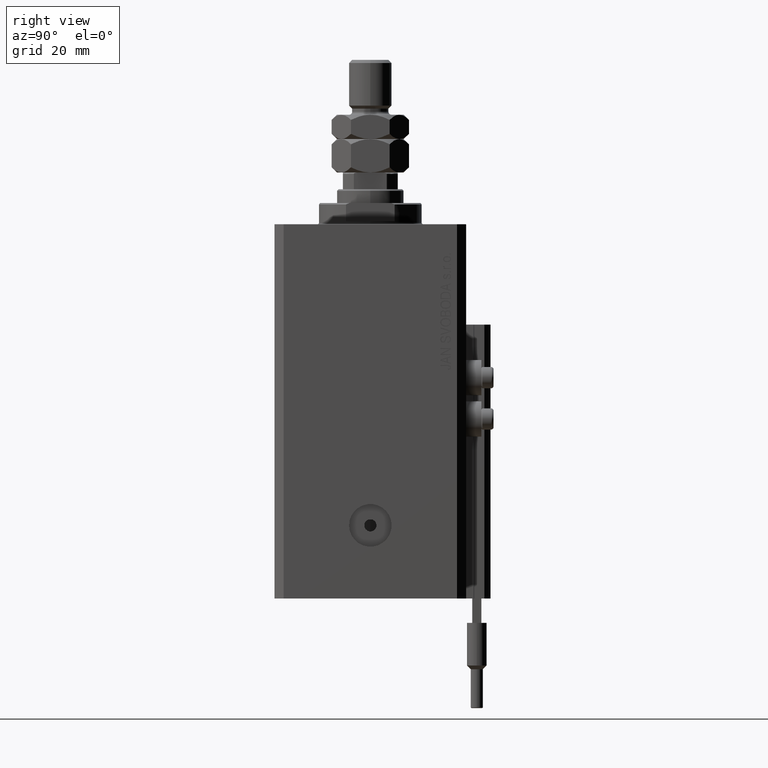
[diagram: clean part render]
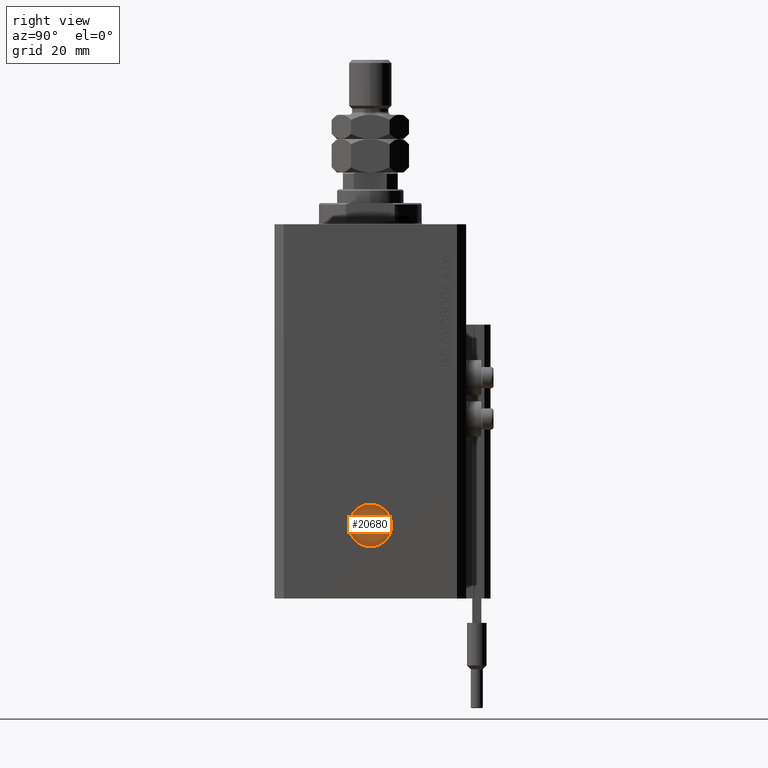
[diagram: same view with one face highlighted and labeled with its STEP entity id]
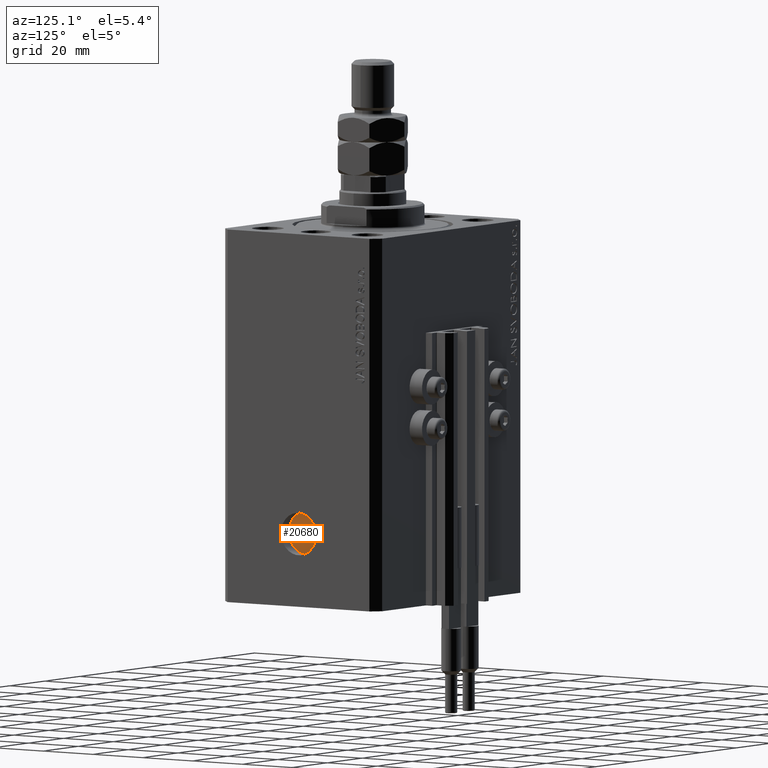
[diagram: same view with one face highlighted and labeled with its STEP entity id]
A machine part, right view. The second image highlights one B-rep face of the part: STEP entity #20680.
A second angle (auxiliary view) of the same face is appended — the face is thin or edge-on in the first view.
In plain terms, the highlighted planar face has unit normal (1, -0, 0).
Its self-contained STEP definition (entity closure, byte-faithful):
#3496 = EDGE_CURVE ( 'NONE', #31730, #36726, #12589, .T. ) ;
#4308 = ORIENTED_EDGE ( 'NONE', *, *, #5108, .F. ) ;
#5108 = EDGE_CURVE ( 'NONE', #32366, #29193, #11021, .T. ) ;
#5572 = AXIS2_PLACEMENT_3D ( 'NONE', #12677, #24964, #13662 ) ;
#5897 = PLANE ( 'NONE',  #5572 ) ;
#7275 = CARTESIAN_POINT ( 'NONE',  ( 38.00000000000024158, -1.999999999999897193, -99.00000000000000000 ) ) ;
#7664 = ORIENTED_EDGE ( 'NONE', *, *, #38973, .F. ) ;
#8913 = FACE_OUTER_BOUND ( 'NONE', #16651, .T. ) ;
#10106 = DIRECTION ( 'NONE',  ( 1.000000000000000000, -1.334402673828349134E-14, 0.000000000000000000 ) ) ;
#11021 = CIRCLE ( 'NONE', #45452, 1.999999999999996225 ) ;
#12589 = CIRCLE ( 'NONE', #18215, 7.000000000000000000 ) ;
#12677 = CARTESIAN_POINT ( 'NONE',  ( 38.00000000000027001, 9.869897671684396916E-14, -99.00000000000000000 ) ) ;
#13662 = DIRECTION ( 'NONE',  ( 1.334402673828349134E-14, 1.000000000000000000, 0.000000000000000000 ) ) ;
#14100 = DIRECTION ( 'NONE',  ( 1.387778780781448358E-14, 1.000000000000000000, 0.000000000000000000 ) ) ;
#14623 = CARTESIAN_POINT ( 'NONE',  ( 38.00000000000027001, 9.869897671684396916E-14, -99.00000000000000000 ) ) ;
#15273 = AXIS2_PLACEMENT_3D ( 'NONE', #14623, #38171, #29663 ) ;
#16651 = EDGE_LOOP ( 'NONE', ( #44257, #24881 ) ) ;
#17988 = DIRECTION ( 'NONE',  ( 1.000000000000000000, -1.334402673828349134E-14, 0.000000000000000000 ) ) ;
#18215 = AXIS2_PLACEMENT_3D ( 'NONE', #44140, #35857, #43888 ) ;
#20187 = CARTESIAN_POINT ( 'NONE',  ( 38.00000000000029843, 2.000000000000095035, -99.00000000000000000 ) ) ;
#20680 = ADVANCED_FACE ( 'NONE', ( #44010, #8913 ), #5897, .T. ) ;
#21160 = AXIS2_PLACEMENT_3D ( 'NONE', #22373, #10106, #14100 ) ;
#22373 = CARTESIAN_POINT ( 'NONE',  ( 38.00000000000027001, 9.869897671684393130E-14, -99.00000000000000000 ) ) ;
#24201 = EDGE_CURVE ( 'NONE', #36726, #31730, #46421, .T. ) ;
#24881 = ORIENTED_EDGE ( 'NONE', *, *, #3496, .T. ) ;
#24964 = DIRECTION ( 'NONE',  ( 1.000000000000000000, -1.334402673828349134E-14, 0.000000000000000000 ) ) ;
#29193 = VERTEX_POINT ( 'NONE', #7275 ) ;
#29663 = DIRECTION ( 'NONE',  ( 1.288651725011342390E-14, 1.000000000000000000, 0.000000000000000000 ) ) ;
#31730 = VERTEX_POINT ( 'NONE', #44279 ) ;
#32366 = VERTEX_POINT ( 'NONE', #20187 ) ;
#35857 = DIRECTION ( 'NONE',  ( 1.000000000000000000, -1.334402673828349134E-14, 0.000000000000000000 ) ) ;
#36726 = VERTEX_POINT ( 'NONE', #45458 ) ;
#38171 = DIRECTION ( 'NONE',  ( 1.000000000000000000, -1.334402673828349134E-14, 0.000000000000000000 ) ) ;
#38973 = EDGE_CURVE ( 'NONE', #29193, #32366, #45172, .T. ) ;
#39513 = EDGE_LOOP ( 'NONE', ( #4308, #7664 ) ) ;
#43888 = DIRECTION ( 'NONE',  ( 1.288651725011342390E-14, 1.000000000000000000, 0.000000000000000000 ) ) ;
#44010 = FACE_BOUND ( 'NONE', #39513, .T. ) ;
#44062 = CARTESIAN_POINT ( 'NONE',  ( 38.00000000000027001, 9.869897671684393130E-14, -99.00000000000000000 ) ) ;
#44140 = CARTESIAN_POINT ( 'NONE',  ( 38.00000000000027001, 9.869897671684396916E-14, -99.00000000000000000 ) ) ;
#44257 = ORIENTED_EDGE ( 'NONE', *, *, #24201, .T. ) ;
#44279 = CARTESIAN_POINT ( 'NONE',  ( 38.00000000000017764, -6.999999999999901412, -99.00000000000000000 ) ) ;
#44563 = DIRECTION ( 'NONE',  ( 1.387778780781448358E-14, 1.000000000000000000, 0.000000000000000000 ) ) ;
#45172 = CIRCLE ( 'NONE', #21160, 1.999999999999996225 ) ;
#45452 = AXIS2_PLACEMENT_3D ( 'NONE', #44062, #17988, #44563 ) ;
#45458 = CARTESIAN_POINT ( 'NONE',  ( 38.00000000000036238, 7.000000000000098588, -99.00000000000000000 ) ) ;
#46421 = CIRCLE ( 'NONE', #15273, 7.000000000000000000 ) ;